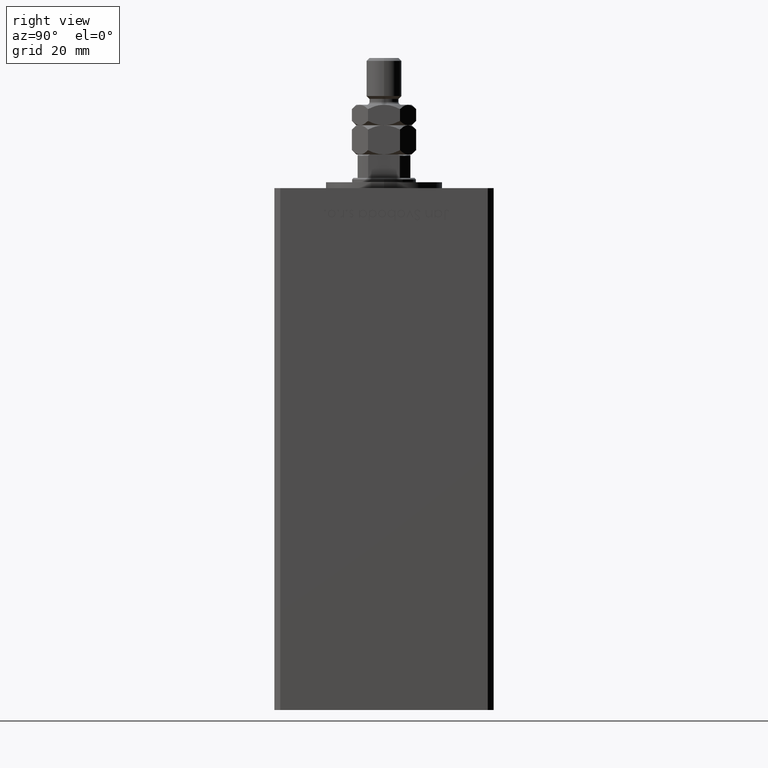
[diagram: clean part render]
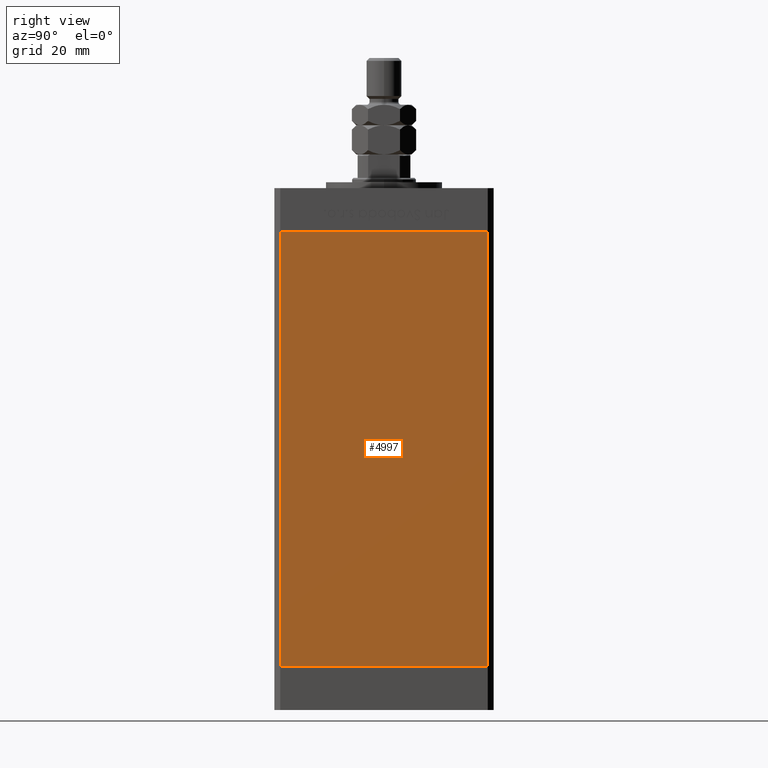
[diagram: same view with one face highlighted and labeled with its STEP entity id]
A machine part, right view. The second image highlights one B-rep face of the part: STEP entity #4997.
In plain terms, the highlighted planar face has unit normal (1, -0, 0).
Its self-contained STEP definition (entity closure, byte-faithful):
#94 = VECTOR ( 'NONE', #1638, 1000.000000000000000 ) ;
#1638 = DIRECTION ( 'NONE',  ( -2.931927001650941360E-16, -1.000000000000000000, 0.000000000000000000 ) ) ;
#3579 = VERTEX_POINT ( 'NONE', #22734 ) ;
#4847 = EDGE_CURVE ( 'NONE', #8067, #3579, #35353, .T. ) ;
#4997 = ADVANCED_FACE ( 'NONE', ( #38821 ), #31198, .T. ) ;
#8067 = VERTEX_POINT ( 'NONE', #49401 ) ;
#10764 = VECTOR ( 'NONE', #13644, 1000.000000000000000 ) ;
#12262 = EDGE_CURVE ( 'NONE', #3579, #23621, #22072, .T. ) ;
#12271 = CARTESIAN_POINT ( 'NONE',  ( 42.50000000000000711, 35.50000000000001421, 0.000000000000000000 ) ) ;
#12655 = CARTESIAN_POINT ( 'NONE',  ( 42.50000000000000711, 35.50000000000001421, 148.5000000000000000 ) ) ;
#13644 = DIRECTION ( 'NONE',  ( -0.000000000000000000, -0.000000000000000000, -1.000000000000000000 ) ) ;
#15186 = EDGE_CURVE ( 'NONE', #18989, #23621, #28355, .T. ) ;
#15211 = CARTESIAN_POINT ( 'NONE',  ( 42.50000000000000711, 35.50000000000001421, 148.5000000000000000 ) ) ;
#18989 = VERTEX_POINT ( 'NONE', #18994 ) ;
#18994 = CARTESIAN_POINT ( 'NONE',  ( 42.50000000000000711, 35.50000000000001421, 0.000000000000000000 ) ) ;
#22072 = LINE ( 'NONE', #50924, #10764 ) ;
#22476 = DIRECTION ( 'NONE',  ( 1.000000000000000000, -2.931927001650941360E-16, 0.000000000000000000 ) ) ;
#22734 = CARTESIAN_POINT ( 'NONE',  ( 42.49999999999998579, -35.50000000000000711, 148.5000000000000000 ) ) ;
#23621 = VERTEX_POINT ( 'NONE', #36413 ) ;
#25719 = LINE ( 'NONE', #12655, #41227 ) ;
#28355 = LINE ( 'NONE', #12271, #34298 ) ;
#31198 = PLANE ( 'NONE',  #38336 ) ;
#31211 = EDGE_LOOP ( 'NONE', ( #44873, #39168, #39587, #32911 ) ) ;
#32911 = ORIENTED_EDGE ( 'NONE', *, *, #12262, .T. ) ;
#34298 = VECTOR ( 'NONE', #44940, 1000.000000000000000 ) ;
#35353 = LINE ( 'NONE', #15211, #94 ) ;
#36413 = CARTESIAN_POINT ( 'NONE',  ( 42.49999999999998579, -35.50000000000000711, 0.000000000000000000 ) ) ;
#38336 = AXIS2_PLACEMENT_3D ( 'NONE', #42894, #22476, #47782 ) ;
#38821 = FACE_OUTER_BOUND ( 'NONE', #31211, .T. ) ;
#39168 = ORIENTED_EDGE ( 'NONE', *, *, #52273, .F. ) ;
#39587 = ORIENTED_EDGE ( 'NONE', *, *, #4847, .T. ) ;
#41227 = VECTOR ( 'NONE', #45845, 1000.000000000000000 ) ;
#42894 = CARTESIAN_POINT ( 'NONE',  ( 42.50000000000000711, 35.50000000000001421, 148.5000000000000000 ) ) ;
#44873 = ORIENTED_EDGE ( 'NONE', *, *, #15186, .F. ) ;
#44940 = DIRECTION ( 'NONE',  ( -2.931927001650941360E-16, -1.000000000000000000, 0.000000000000000000 ) ) ;
#45845 = DIRECTION ( 'NONE',  ( -0.000000000000000000, -0.000000000000000000, -1.000000000000000000 ) ) ;
#47782 = DIRECTION ( 'NONE',  ( 2.931927001650941360E-16, 1.000000000000000000, 0.000000000000000000 ) ) ;
#49401 = CARTESIAN_POINT ( 'NONE',  ( 42.50000000000000711, 35.50000000000001421, 148.5000000000000000 ) ) ;
#50924 = CARTESIAN_POINT ( 'NONE',  ( 42.49999999999998579, -35.50000000000000711, 148.5000000000000000 ) ) ;
#52273 = EDGE_CURVE ( 'NONE', #8067, #18989, #25719, .T. ) ;